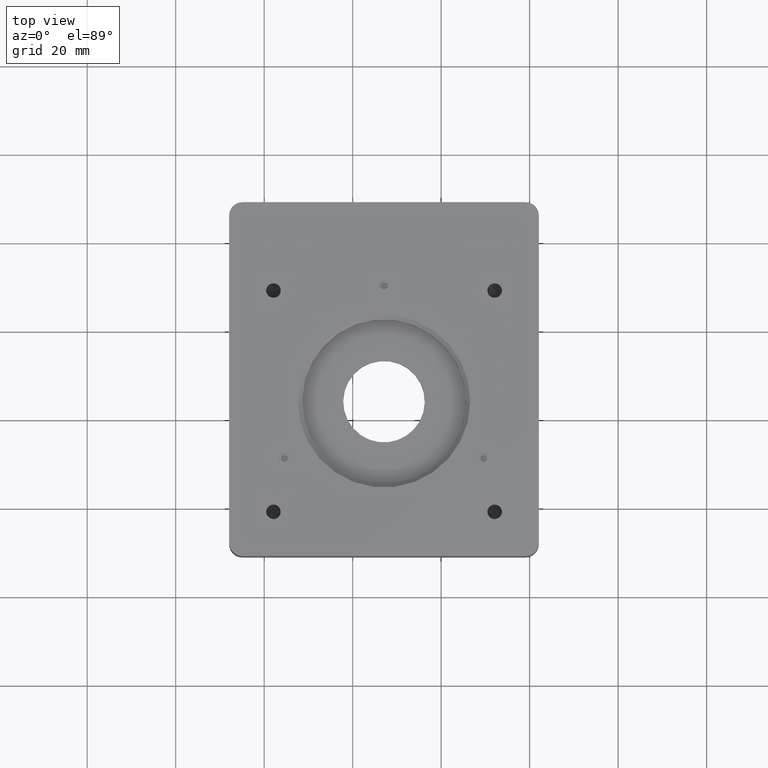
[diagram: clean part render]
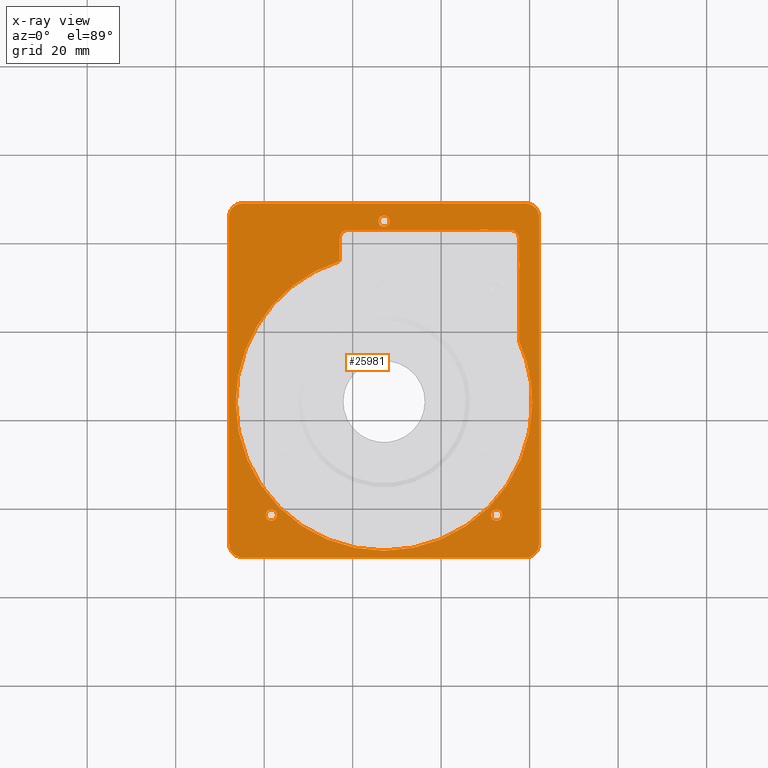
[diagram: x-ray — body ghosted, one internal face saturated and labeled with its STEP entity id]
A machine part, top view, then the same camera in x-ray: the body is ghosted and one INTERNAL B-rep face — a face not visible from any outside direction — is saturated and labeled: STEP entity #25981.
In plain terms, the highlighted planar face has unit normal (-0, 0, 1).
Its self-contained STEP definition (entity closure, byte-faithful):
#439 = AXIS2_PLACEMENT_3D ( 'NONE', #24140, #4527, #35776 ) ;
#663 = DIRECTION ( 'NONE',  ( 0.0000000000000000000, -0.0000000000000000000, -1.000000000000000000 ) ) ;
#1604 = VERTEX_POINT ( 'NONE', #33865 ) ;
#1712 = DIRECTION ( 'NONE',  ( 0.0000000000000000000, 0.0000000000000000000, -1.000000000000000000 ) ) ;
#2031 = DIRECTION ( 'NONE',  ( -0.0000000000000000000, -0.0000000000000000000, -1.000000000000000000 ) ) ;
#2583 = CIRCLE ( 'NONE', #31984, 1.249999999999988900 ) ;
#2728 = EDGE_CURVE ( 'NONE', #23976, #30311, #44426, .T. ) ;
#3131 = CARTESIAN_POINT ( 'NONE',  ( 10.67937017754285600, 41.16302805921910800, 2.637473572875137500E-011 ) ) ;
#3389 = DIRECTION ( 'NONE',  ( -1.000000000000000000, 0.0000000000000000000, 0.0000000000000000000 ) ) ;
#3450 = DIRECTION ( 'NONE',  ( -1.000000000000000000, 0.0000000000000000000, 0.0000000000000000000 ) ) ;
#3483 = CIRCLE ( 'NONE', #8254, 33.50000000000000000 ) ;
#3486 = EDGE_LOOP ( 'NONE', ( #48463, #7792, #41262, #8560, #31201, #45343, #38741, #29339, #45469, #18566, #45308, #16661 ) ) ;
#3567 = DIRECTION ( 'NONE',  ( 0.0000000000000000000, -0.0000000000000000000, -1.000000000000000000 ) ) ;
#3877 = EDGE_CURVE ( 'NONE', #24567, #47421, #8228, .T. ) ;
#3991 = DIRECTION ( 'NONE',  ( 0.0000000000000000000, 0.0000000000000000000, -1.000000000000000000 ) ) ;
#4127 = VERTEX_POINT ( 'NONE', #47516 ) ;
#4185 = VERTEX_POINT ( 'NONE', #47132 ) ;
#4251 = DIRECTION ( 'NONE',  ( 1.000000000000000000, 0.0000000000000000000, 0.0000000000000000000 ) ) ;
#4527 = DIRECTION ( 'NONE',  ( 0.0000000000000000000, 0.0000000000000000000, -1.000000000000000000 ) ) ;
#4704 = DIRECTION ( 'NONE',  ( -1.000000000000000000, 0.0000000000000000000, 0.0000000000000000000 ) ) ;
#4761 = CARTESIAN_POINT ( 'NONE',  ( -38.37487687237869900, -23.29281606349655600, 2.637333350816635400E-011 ) ) ;
#5179 = ORIENTED_EDGE ( 'NONE', *, *, #31005, .F. ) ;
#6721 = CARTESIAN_POINT ( 'NONE',  ( -22.91903274966293200, 34.13567261671543900, 2.637473572875137500E-011 ) ) ;
#6798 = VERTEX_POINT ( 'NONE', #40153 ) ;
#7090 = EDGE_CURVE ( 'NONE', #29435, #27398, #44243, .T. ) ;
#7382 = VERTEX_POINT ( 'NONE', #18860 ) ;
#7396 = VECTOR ( 'NONE', #20222, 1000.000000000000000 ) ;
#7792 = ORIENTED_EDGE ( 'NONE', *, *, #34461, .F. ) ;
#7816 = DIRECTION ( 'NONE',  ( 1.000000000000000000, 0.0000000000000000000, 0.0000000000000000000 ) ) ;
#7895 = EDGE_CURVE ( 'NONE', #29435, #29059, #48425, .T. ) ;
#8097 = VECTOR ( 'NONE', #27597, 1000.000000000000000 ) ;
#8104 = ORIENTED_EDGE ( 'NONE', *, *, #43467, .T. ) ;
#8228 = CIRCLE ( 'NONE', #10481, 1.249999999999988900 ) ;
#8254 = AXIS2_PLACEMENT_3D ( 'NONE', #21637, #1712, #48927 ) ;
#8307 = CARTESIAN_POINT ( 'NONE',  ( -12.91903274966293200, 2.163028059219103600, 2.637473572875137500E-011 ) ) ;
#8560 = ORIENTED_EDGE ( 'NONE', *, *, #44228, .T. ) ;
#8695 = DIRECTION ( 'NONE',  ( -0.0000000000000000000, -0.0000000000000000000, -1.000000000000000000 ) ) ;
#8738 = ORIENTED_EDGE ( 'NONE', *, *, #11424, .T. ) ;
#9372 = LINE ( 'NONE', #35054, #20337 ) ;
#10084 = CARTESIAN_POINT ( 'NONE',  ( 17.58096725033708600, 39.16302805921910100, 2.637473572875137500E-011 ) ) ;
#10148 = VECTOR ( 'NONE', #3450, 1000.000000000000000 ) ;
#10481 = AXIS2_PLACEMENT_3D ( 'NONE', #14648, #46036, #3389 ) ;
#10540 = CARTESIAN_POINT ( 'NONE',  ( -14.16903274966292200, 43.16302805921910800, 2.637333350816635400E-011 ) ) ;
#10750 = VERTEX_POINT ( 'NONE', #23116 ) ;
#10832 = DIRECTION ( 'NONE',  ( -1.000000000000000000, 0.0000000000000000000, 0.0000000000000000000 ) ) ;
#11131 = CARTESIAN_POINT ( 'NONE',  ( 11.28681137305272800, -23.29281606349666600, 2.637333350816635400E-011 ) ) ;
#11348 = EDGE_CURVE ( 'NONE', #10750, #23862, #23006, .T. ) ;
#11424 = EDGE_CURVE ( 'NONE', #13303, #30216, #41316, .T. ) ;
#11480 = CARTESIAN_POINT ( 'NONE',  ( -22.91903274966293200, 39.16302805921910100, 2.637473572875137500E-011 ) ) ;
#11614 = EDGE_CURVE ( 'NONE', #38485, #17480, #14446, .T. ) ;
#11814 = DIRECTION ( 'NONE',  ( 8.673617379884035500E-017, -1.000000000000000000, 0.0000000000000000000 ) ) ;
#11939 = DIRECTION ( 'NONE',  ( 1.000000000000000000, 0.0000000000000000000, 0.0000000000000000000 ) ) ;
#12288 = VERTEX_POINT ( 'NONE', #10084 ) ;
#12390 = CARTESIAN_POINT ( 'NONE',  ( 19.08096725033707500, 44.16302805921909400, 2.637473572875137500E-011 ) ) ;
#12423 = DIRECTION ( 'NONE',  ( 1.000000000000000000, 0.0000000000000000000, 0.0000000000000000000 ) ) ;
#12523 = EDGE_CURVE ( 'NONE', #1604, #38485, #35114, .T. ) ;
#12954 = DIRECTION ( 'NONE',  ( -1.000000000000000000, 0.0000000000000000000, 0.0000000000000000000 ) ) ;
#13252 = DIRECTION ( 'NONE',  ( -1.000000000000000000, 0.0000000000000000000, 0.0000000000000000000 ) ) ;
#13303 = VERTEX_POINT ( 'NONE', #26483 ) ;
#13437 = CARTESIAN_POINT ( 'NONE',  ( -38.37487687237869900, -23.29281606349655600, 2.637333350816635400E-011 ) ) ;
#14182 = DIRECTION ( 'NONE',  ( -1.000000000000000000, 0.0000000000000000000, 0.0000000000000000000 ) ) ;
#14446 = CIRCLE ( 'NONE', #40548, 33.50000000000000000 ) ;
#14614 = CARTESIAN_POINT ( 'NONE',  ( 13.78681137305271100, -23.29281606349666600, 2.637333350816635400E-011 ) ) ;
#14648 = CARTESIAN_POINT ( 'NONE',  ( -12.91903274966293200, 43.16302805921910800, 2.637333350816635400E-011 ) ) ;
#14713 = EDGE_LOOP ( 'NONE', ( #5179, #26235 ) ) ;
#14718 = DIRECTION ( 'NONE',  ( 0.0000000000000000000, -0.0000000000000000000, -1.000000000000000000 ) ) ;
#14922 = CIRCLE ( 'NONE', #40055, 2.000000000000001800 ) ;
#15530 = PLANE ( 'NONE',  #29499 ) ;
#15542 = EDGE_CURVE ( 'NONE', #45617, #37774, #34858, .T. ) ;
#15958 = DIRECTION ( 'NONE',  ( 1.000000000000000000, 0.0000000000000000000, 0.0000000000000000000 ) ) ;
#16551 = ORIENTED_EDGE ( 'NONE', *, *, #46303, .T. ) ;
#16661 = ORIENTED_EDGE ( 'NONE', *, *, #12523, .F. ) ;
#16850 = EDGE_CURVE ( 'NONE', #30311, #23976, #45086, .T. ) ;
#17189 = VECTOR ( 'NONE', #30026, 1000.000000000000000 ) ;
#17336 = DIRECTION ( 'NONE',  ( -1.000000000000000000, 0.0000000000000000000, 0.0000000000000000000 ) ) ;
#17480 = VERTEX_POINT ( 'NONE', #32286 ) ;
#18090 = CARTESIAN_POINT ( 'NONE',  ( 22.08096725033707800, 44.16302805921909400, 2.637473572875137500E-011 ) ) ;
#18105 = FACE_BOUND ( 'NONE', #3486, .T. ) ;
#18158 = CIRCLE ( 'NONE', #439, 8.000000000000001800 ) ;
#18566 = ORIENTED_EDGE ( 'NONE', *, *, #26200, .F. ) ;
#18860 = CARTESIAN_POINT ( 'NONE',  ( 19.08096725033707500, 47.16302805921909400, 2.637473572875137500E-011 ) ) ;
#19096 = ORIENTED_EDGE ( 'NONE', *, *, #16850, .F. ) ;
#19123 = AXIS2_PLACEMENT_3D ( 'NONE', #35767, #27883, #15958 ) ;
#19527 = CARTESIAN_POINT ( 'NONE',  ( 9.651920938368086000, 33.22928064321705900, 2.637473572875137500E-011 ) ) ;
#19994 = LINE ( 'NONE', #45864, #23676 ) ;
#20222 = DIRECTION ( 'NONE',  ( 1.000000000000000000, -0.0000000000000000000, -0.0000000000000000000 ) ) ;
#20313 = EDGE_CURVE ( 'NONE', #30718, #29059, #25509, .T. ) ;
#20337 = VECTOR ( 'NONE', #11814, 1000.000000000000000 ) ;
#21637 = CARTESIAN_POINT ( 'NONE',  ( -12.91903274966293200, 2.163028059219103600, 2.637473572875137500E-011 ) ) ;
#22177 = CIRCLE ( 'NONE', #33237, 3.000000000000002700 ) ;
#23006 = LINE ( 'NONE', #42695, #10148 ) ;
#23116 = CARTESIAN_POINT ( 'NONE',  ( 15.58096725033708600, 41.16302805921910800, 2.637473572875137500E-011 ) ) ;
#23676 = VECTOR ( 'NONE', #34942, 1000.000000000000000 ) ;
#23826 = LINE ( 'NONE', #27047, #7396 ) ;
#23862 = VERTEX_POINT ( 'NONE', #3131 ) ;
#23976 = VERTEX_POINT ( 'NONE', #11131 ) ;
#24140 = CARTESIAN_POINT ( 'NONE',  ( 9.651920938368086000, 33.22928064321705900, 2.637473572875137500E-011 ) ) ;
#24472 = CARTESIAN_POINT ( 'NONE',  ( 12.53681137305272000, -23.29281606349666600, 2.637333350816635400E-011 ) ) ;
#24567 = VERTEX_POINT ( 'NONE', #44265 ) ;
#25010 = CIRCLE ( 'NONE', #41164, 1.249999999999987100 ) ;
#25230 = DIRECTION ( 'NONE',  ( -8.673617379884035500E-017, 1.000000000000000000, -0.0000000000000000000 ) ) ;
#25509 = LINE ( 'NONE', #33955, #38391 ) ;
#25566 = EDGE_CURVE ( 'NONE', #27768, #12288, #19994, .T. ) ;
#25775 = EDGE_CURVE ( 'NONE', #4127, #23862, #18158, .T. ) ;
#25888 = AXIS2_PLACEMENT_3D ( 'NONE', #19527, #3991, #43071 ) ;
#25981 = ADVANCED_FACE ( 'NONE', ( #35847, #50455, #39509, #42565, #18105 ), #15530, .F. ) ;
#26052 = VERTEX_POINT ( 'NONE', #42829 ) ;
#26200 = EDGE_CURVE ( 'NONE', #17480, #45617, #3483, .T. ) ;
#26235 = ORIENTED_EDGE ( 'NONE', *, *, #30136, .F. ) ;
#26483 = CARTESIAN_POINT ( 'NONE',  ( -47.91903274966293200, 44.16302805921909400, 2.637473572875137500E-011 ) ) ;
#26692 = EDGE_LOOP ( 'NONE', ( #42373, #48726 ) ) ;
#26918 = CARTESIAN_POINT ( 'NONE',  ( -44.91903274966291800, -29.83697194078090600, 2.637473572875137500E-011 ) ) ;
#27047 = CARTESIAN_POINT ( 'NONE',  ( -2.919032749662930900, 41.16302805921910800, 2.637473572875137500E-011 ) ) ;
#27051 = CARTESIAN_POINT ( 'NONE',  ( -39.62487687237868500, -23.29281606349655600, 2.637333350816635400E-011 ) ) ;
#27162 = EDGE_LOOP ( 'NONE', ( #27642, #40213, #40765, #16551, #47533, #8738, #30194, #8104 ) ) ;
#27398 = VERTEX_POINT ( 'NONE', #18090 ) ;
#27597 = DIRECTION ( 'NONE',  ( 6.563910005011426900E-017, 1.000000000000000000, 0.0000000000000000000 ) ) ;
#27642 = ORIENTED_EDGE ( 'NONE', *, *, #7090, .F. ) ;
#27768 = VERTEX_POINT ( 'NONE', #41601 ) ;
#27883 = DIRECTION ( 'NONE',  ( -0.0000000000000000000, 0.0000000000000000000, 1.000000000000000000 ) ) ;
#28757 = CIRCLE ( 'NONE', #42453, 1.249999999999987100 ) ;
#28793 = CARTESIAN_POINT ( 'NONE',  ( -12.91903274966293200, 43.16302805921910800, 2.637333350816635400E-011 ) ) ;
#29059 = VERTEX_POINT ( 'NONE', #37964 ) ;
#29292 = DIRECTION ( 'NONE',  ( -0.0000000000000000000, -0.0000000000000000000, -1.000000000000000000 ) ) ;
#29339 = ORIENTED_EDGE ( 'NONE', *, *, #44664, .T. ) ;
#29435 = VERTEX_POINT ( 'NONE', #31591 ) ;
#29499 = AXIS2_PLACEMENT_3D ( 'NONE', #31399, #46571, #4251 ) ;
#29821 = EDGE_CURVE ( 'NONE', #7382, #30216, #36757, .T. ) ;
#30026 = DIRECTION ( 'NONE',  ( -1.000000000000000000, -0.0000000000000000000, -0.0000000000000000000 ) ) ;
#30085 = EDGE_CURVE ( 'NONE', #47421, #24567, #2583, .T. ) ;
#30136 = EDGE_CURVE ( 'NONE', #31517, #37182, #28757, .T. ) ;
#30194 = ORIENTED_EDGE ( 'NONE', *, *, #29821, .F. ) ;
#30216 = VERTEX_POINT ( 'NONE', #37152 ) ;
#30311 = VERTEX_POINT ( 'NONE', #14614 ) ;
#30534 = CARTESIAN_POINT ( 'NONE',  ( -47.91903274966293200, 47.16302805921909400, 2.637473572875137500E-011 ) ) ;
#30718 = VERTEX_POINT ( 'NONE', #37500 ) ;
#30862 = AXIS2_PLACEMENT_3D ( 'NONE', #12390, #663, #36323 ) ;
#31005 = EDGE_CURVE ( 'NONE', #37182, #31517, #25010, .T. ) ;
#31201 = ORIENTED_EDGE ( 'NONE', *, *, #11348, .T. ) ;
#31399 = CARTESIAN_POINT ( 'NONE',  ( 22.08096725033708600, -32.83697194078090600, 2.637473572875137500E-011 ) ) ;
#31517 = VERTEX_POINT ( 'NONE', #39206 ) ;
#31591 = CARTESIAN_POINT ( 'NONE',  ( 22.08096725033708600, -29.83697194078090600, 2.637473572875137500E-011 ) ) ;
#31807 = VECTOR ( 'NONE', #44188, 1000.000000000000000 ) ;
#31984 = AXIS2_PLACEMENT_3D ( 'NONE', #28793, #2031, #13252 ) ;
#32286 = CARTESIAN_POINT ( 'NONE',  ( -46.41903274966293200, 2.163028059219103600, 2.637473572875137500E-011 ) ) ;
#32597 = CARTESIAN_POINT ( 'NONE',  ( 20.58096725033706800, 2.163028059219107600, 2.637473572875137500E-011 ) ) ;
#32855 = CIRCLE ( 'NONE', #25888, 8.000000000000001800 ) ;
#33237 = AXIS2_PLACEMENT_3D ( 'NONE', #26918, #3567, #7816 ) ;
#33388 = AXIS2_PLACEMENT_3D ( 'NONE', #43536, #47424, #11939 ) ;
#33467 = CARTESIAN_POINT ( 'NONE',  ( 12.53681137305272000, -23.29281606349666600, 2.637333350816635400E-011 ) ) ;
#33865 = CARTESIAN_POINT ( 'NONE',  ( 17.58096725033708200, 16.01943451977009800, 2.637473572875137500E-011 ) ) ;
#33898 = CARTESIAN_POINT ( 'NONE',  ( -12.91903274966293200, 2.163028059219103600, 2.637473572875137500E-011 ) ) ;
#33955 = CARTESIAN_POINT ( 'NONE',  ( -47.91903274966292500, -32.83697194078090600, 2.637473572875137500E-011 ) ) ;
#34461 = EDGE_CURVE ( 'NONE', #27768, #26052, #32855, .T. ) ;
#34858 = LINE ( 'NONE', #41084, #31807 ) ;
#34942 = DIRECTION ( 'NONE',  ( 6.563910005011426900E-017, 1.000000000000000000, 0.0000000000000000000 ) ) ;
#35054 = CARTESIAN_POINT ( 'NONE',  ( -47.91903274966293200, 47.16302805921909400, 2.637473572875137500E-011 ) ) ;
#35114 = CIRCLE ( 'NONE', #41906, 33.50000000000000000 ) ;
#35767 = CARTESIAN_POINT ( 'NONE',  ( 15.58096725033708600, 39.16302805921910100, 2.637473572875137500E-011 ) ) ;
#35776 = DIRECTION ( 'NONE',  ( -1.000000000000000000, 0.0000000000000000000, 0.0000000000000000000 ) ) ;
#35847 = FACE_OUTER_BOUND ( 'NONE', #27162, .T. ) ;
#36123 = DIRECTION ( 'NONE',  ( -1.000000000000000000, 0.0000000000000000000, 0.0000000000000000000 ) ) ;
#36323 = DIRECTION ( 'NONE',  ( 1.000000000000000000, 0.0000000000000000000, 0.0000000000000000000 ) ) ;
#36757 = LINE ( 'NONE', #30534, #17189 ) ;
#37152 = CARTESIAN_POINT ( 'NONE',  ( -44.91903274966292500, 47.16302805921909400, 2.637473572875137500E-011 ) ) ;
#37182 = VERTEX_POINT ( 'NONE', #27051 ) ;
#37500 = CARTESIAN_POINT ( 'NONE',  ( -44.91903274966291800, -32.83697194078090600, 2.637473572875137500E-011 ) ) ;
#37766 = EDGE_CURVE ( 'NONE', #13303, #4185, #9372, .T. ) ;
#37774 = VERTEX_POINT ( 'NONE', #11480 ) ;
#37964 = CARTESIAN_POINT ( 'NONE',  ( 19.08096725033708200, -32.83697194078090600, 2.637473572875137500E-011 ) ) ;
#38121 = CARTESIAN_POINT ( 'NONE',  ( 19.08096725033708200, -29.83697194078090600, 2.637473572875137500E-011 ) ) ;
#38391 = VECTOR ( 'NONE', #50128, 1000.000000000000000 ) ;
#38485 = VERTEX_POINT ( 'NONE', #32597 ) ;
#38741 = ORIENTED_EDGE ( 'NONE', *, *, #47598, .F. ) ;
#39206 = CARTESIAN_POINT ( 'NONE',  ( -37.12487687237870700, -23.29281606349655600, 2.637333350816635400E-011 ) ) ;
#39255 = LINE ( 'NONE', #47558, #8097 ) ;
#39415 = DIRECTION ( 'NONE',  ( -0.0000000000000000000, 0.0000000000000000000, 1.000000000000000000 ) ) ;
#39509 = FACE_BOUND ( 'NONE', #26692, .T. ) ;
#39533 = DIRECTION ( 'NONE',  ( 0.0000000000000000000, 0.0000000000000000000, -1.000000000000000000 ) ) ;
#40055 = AXIS2_PLACEMENT_3D ( 'NONE', #47740, #39415, #12423 ) ;
#40153 = CARTESIAN_POINT ( 'NONE',  ( -20.91903274966293200, 41.16302805921910800, 2.637473572875137500E-011 ) ) ;
#40198 = DIRECTION ( 'NONE',  ( -0.0000000000000000000, -0.0000000000000000000, -1.000000000000000000 ) ) ;
#40213 = ORIENTED_EDGE ( 'NONE', *, *, #7895, .T. ) ;
#40548 = AXIS2_PLACEMENT_3D ( 'NONE', #33898, #41742, #10832 ) ;
#40765 = ORIENTED_EDGE ( 'NONE', *, *, #20313, .F. ) ;
#41084 = CARTESIAN_POINT ( 'NONE',  ( -22.91903274966293200, 41.16302805921910800, 2.637473572875137500E-011 ) ) ;
#41164 = AXIS2_PLACEMENT_3D ( 'NONE', #4761, #8695, #12954 ) ;
#41205 = AXIS2_PLACEMENT_3D ( 'NONE', #33467, #41821, #14182 ) ;
#41262 = ORIENTED_EDGE ( 'NONE', *, *, #25566, .T. ) ;
#41316 = CIRCLE ( 'NONE', #33388, 3.000000000000002700 ) ;
#41601 = CARTESIAN_POINT ( 'NONE',  ( 17.58096725033708600, 34.29240085403559100, 2.637473572875137500E-011 ) ) ;
#41742 = DIRECTION ( 'NONE',  ( 0.0000000000000000000, 0.0000000000000000000, -1.000000000000000000 ) ) ;
#41821 = DIRECTION ( 'NONE',  ( -0.0000000000000000000, -0.0000000000000000000, -1.000000000000000000 ) ) ;
#41906 = AXIS2_PLACEMENT_3D ( 'NONE', #8307, #39533, #4704 ) ;
#42023 = DIRECTION ( 'NONE',  ( 1.000000000000000000, 0.0000000000000000000, 0.0000000000000000000 ) ) ;
#42337 = AXIS2_PLACEMENT_3D ( 'NONE', #24472, #40198, #36123 ) ;
#42373 = ORIENTED_EDGE ( 'NONE', *, *, #30085, .F. ) ;
#42453 = AXIS2_PLACEMENT_3D ( 'NONE', #13437, #29292, #17336 ) ;
#42565 = FACE_BOUND ( 'NONE', #42775, .T. ) ;
#42695 = CARTESIAN_POINT ( 'NONE',  ( -7.319032749662925500, 41.16302805921910800, 2.637473572875137500E-011 ) ) ;
#42775 = EDGE_LOOP ( 'NONE', ( #44850, #19096 ) ) ;
#42829 = CARTESIAN_POINT ( 'NONE',  ( 17.58096725033708600, 32.16616043239851300, 2.637473572875137500E-011 ) ) ;
#43071 = DIRECTION ( 'NONE',  ( -1.000000000000000000, 0.0000000000000000000, 0.0000000000000000000 ) ) ;
#43467 = EDGE_CURVE ( 'NONE', #7382, #27398, #49218, .T. ) ;
#43536 = CARTESIAN_POINT ( 'NONE',  ( -44.91903274966292500, 44.16302805921909400, 2.637473572875137500E-011 ) ) ;
#43662 = CIRCLE ( 'NONE', #19123, 2.000000000000001800 ) ;
#44188 = DIRECTION ( 'NONE',  ( 1.927470528863118800E-016, 1.000000000000000000, -0.0000000000000000000 ) ) ;
#44228 = EDGE_CURVE ( 'NONE', #12288, #10750, #43662, .T. ) ;
#44243 = LINE ( 'NONE', #48430, #49117 ) ;
#44265 = CARTESIAN_POINT ( 'NONE',  ( -11.66903274966294500, 43.16302805921910800, 2.637333350816635400E-011 ) ) ;
#44426 = CIRCLE ( 'NONE', #41205, 1.249999999999990700 ) ;
#44664 = EDGE_CURVE ( 'NONE', #6798, #37774, #14922, .T. ) ;
#44824 = EDGE_CURVE ( 'NONE', #1604, #26052, #39255, .T. ) ;
#44850 = ORIENTED_EDGE ( 'NONE', *, *, #2728, .F. ) ;
#45086 = CIRCLE ( 'NONE', #42337, 1.249999999999990700 ) ;
#45308 = ORIENTED_EDGE ( 'NONE', *, *, #11614, .F. ) ;
#45343 = ORIENTED_EDGE ( 'NONE', *, *, #25775, .F. ) ;
#45348 = AXIS2_PLACEMENT_3D ( 'NONE', #38121, #14718, #42023 ) ;
#45469 = ORIENTED_EDGE ( 'NONE', *, *, #15542, .F. ) ;
#45617 = VERTEX_POINT ( 'NONE', #6721 ) ;
#45864 = CARTESIAN_POINT ( 'NONE',  ( 17.58096725033708600, 41.16302805921910800, 2.637473572875137500E-011 ) ) ;
#46036 = DIRECTION ( 'NONE',  ( -0.0000000000000000000, -0.0000000000000000000, -1.000000000000000000 ) ) ;
#46303 = EDGE_CURVE ( 'NONE', #30718, #4185, #22177, .T. ) ;
#46571 = DIRECTION ( 'NONE',  ( -0.0000000000000000000, 0.0000000000000000000, 1.000000000000000000 ) ) ;
#47132 = CARTESIAN_POINT ( 'NONE',  ( -47.91903274966292500, -29.83697194078090600, 2.637473572875137500E-011 ) ) ;
#47421 = VERTEX_POINT ( 'NONE', #10540 ) ;
#47424 = DIRECTION ( 'NONE',  ( 0.0000000000000000000, -0.0000000000000000000, -1.000000000000000000 ) ) ;
#47516 = CARTESIAN_POINT ( 'NONE',  ( 8.624471699193316400, 41.16302805921910800, 2.637473572875137500E-011 ) ) ;
#47533 = ORIENTED_EDGE ( 'NONE', *, *, #37766, .F. ) ;
#47558 = CARTESIAN_POINT ( 'NONE',  ( 17.58096725033708600, 41.16302805921910800, 2.637473572875137500E-011 ) ) ;
#47598 = EDGE_CURVE ( 'NONE', #6798, #4127, #23826, .T. ) ;
#47740 = CARTESIAN_POINT ( 'NONE',  ( -20.91903274966293200, 39.16302805921910100, 2.637473572875137500E-011 ) ) ;
#48425 = CIRCLE ( 'NONE', #45348, 2.999999999999999100 ) ;
#48430 = CARTESIAN_POINT ( 'NONE',  ( 22.08096725033707800, 47.16302805921909400, 2.637473572875137500E-011 ) ) ;
#48463 = ORIENTED_EDGE ( 'NONE', *, *, #44824, .T. ) ;
#48726 = ORIENTED_EDGE ( 'NONE', *, *, #3877, .F. ) ;
#48927 = DIRECTION ( 'NONE',  ( -1.000000000000000000, 0.0000000000000000000, 0.0000000000000000000 ) ) ;
#49117 = VECTOR ( 'NONE', #25230, 1000.000000000000000 ) ;
#49218 = CIRCLE ( 'NONE', #30862, 2.999999999999999100 ) ;
#50128 = DIRECTION ( 'NONE',  ( 1.000000000000000000, 0.0000000000000000000, 0.0000000000000000000 ) ) ;
#50455 = FACE_BOUND ( 'NONE', #14713, .T. ) ;